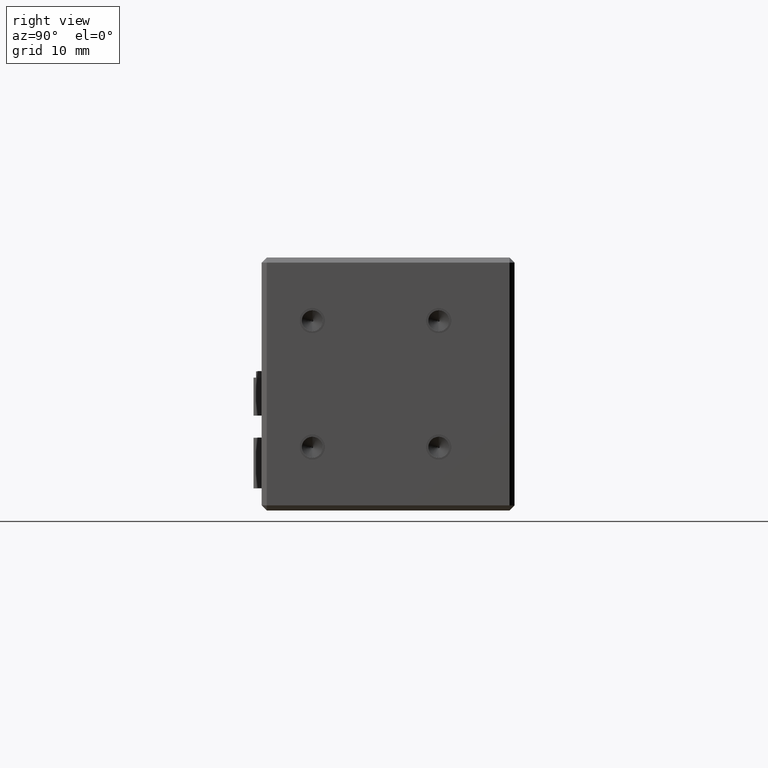
[diagram: clean part render]
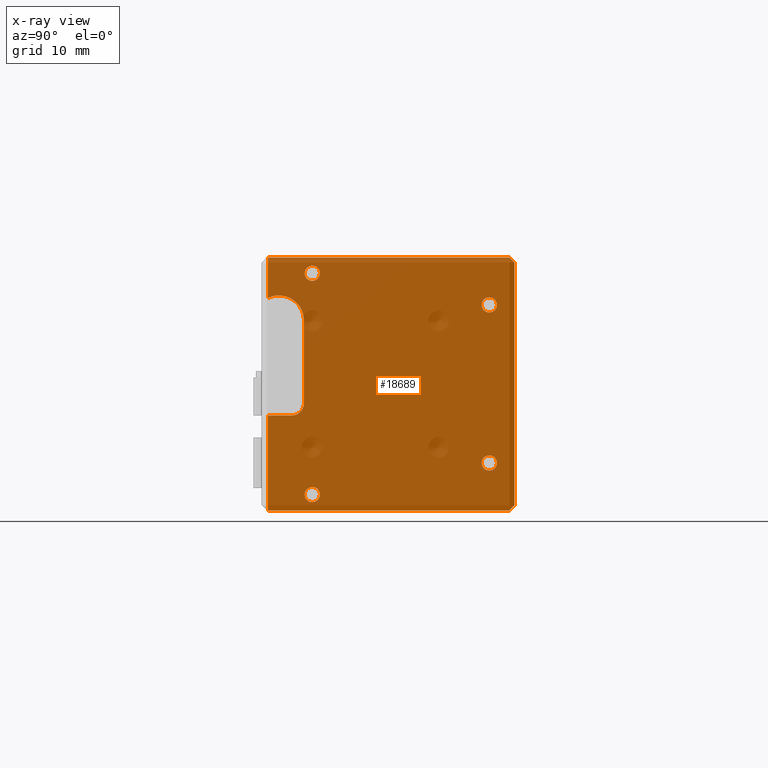
[diagram: x-ray — body ghosted, one internal face saturated and labeled with its STEP entity id]
A machine part, right view, then the same camera in x-ray: the body is ghosted and one INTERNAL B-rep face — a face not visible from any outside direction — is saturated and labeled: STEP entity #18689.
In plain terms, the highlighted planar face has unit normal (1, 0, -0).
Its self-contained STEP definition (entity closure, byte-faithful):
#78 = VERTEX_POINT ( 'NONE', #31512 ) ;
#199 = VERTEX_POINT ( 'NONE', #16194 ) ;
#240 = CARTESIAN_POINT ( 'NONE',  ( -41.23777979801199900, 1.181386022460057600, 36.30000000000956100 ) ) ;
#282 = ORIENTED_EDGE ( 'NONE', *, *, #27741, .T. ) ;
#288 = DIRECTION ( 'NONE',  ( -1.000000000000000000, -1.942890293094023500E-016, 1.301620591984824700E-017 ) ) ;
#364 = EDGE_CURVE ( 'NONE', #17551, #14633, #31022, .T. ) ;
#493 = AXIS2_PLACEMENT_3D ( 'NONE', #18465, #2589, #21147 ) ;
#635 = CARTESIAN_POINT ( 'NONE',  ( -41.23777979801199900, -5.818613977539926400, 33.62077339805586700 ) ) ;
#871 = CARTESIAN_POINT ( 'NONE',  ( -41.23777979801200600, 29.18138602246007500, 32.50000000000954300 ) ) ;
#1042 = CIRCLE ( 'NONE', #13891, 1.199999999999992600 ) ;
#1169 = CIRCLE ( 'NONE', #4544, 1.199999999999993100 ) ;
#1180 = DIRECTION ( 'NONE',  ( -1.301620591984827800E-017, 1.578598363138894200E-016, -1.000000000000000000 ) ) ;
#1219 = DIRECTION ( 'NONE',  ( 0.0000000000000000000, -1.807003620809184500E-016, 1.000000000000000000 ) ) ;
#1511 = VERTEX_POINT ( 'NONE', #7154 ) ;
#1517 = ORIENTED_EDGE ( 'NONE', *, *, #22573, .T. ) ;
#1552 = CARTESIAN_POINT ( 'NONE',  ( -41.23777979801199900, 1.181386022460057600, 1.300000000009557100 ) ) ;
#1726 = EDGE_CURVE ( 'NONE', #22680, #22558, #1169, .T. ) ;
#1935 = EDGE_CURVE ( 'NONE', #13872, #2142, #7043, .T. ) ;
#2013 = EDGE_CURVE ( 'NONE', #23592, #199, #12032, .T. ) ;
#2089 = VERTEX_POINT ( 'NONE', #3049 ) ;
#2097 = DIRECTION ( 'NONE',  ( -1.000000000000000000, -1.942890293094023500E-016, 1.301620591984824700E-017 ) ) ;
#2142 = VERTEX_POINT ( 'NONE', #635 ) ;
#2172 = EDGE_CURVE ( 'NONE', #2142, #10660, #31929, .T. ) ;
#2191 = EDGE_CURVE ( 'NONE', #3240, #1511, #4527, .T. ) ;
#2589 = DIRECTION ( 'NONE',  ( 1.000000000000000000, 1.942890293094023500E-016, -1.301620591984824700E-017 ) ) ;
#2655 = CIRCLE ( 'NONE', #26435, 2.000000000000001800 ) ;
#2877 = CARTESIAN_POINT ( 'NONE',  ( -41.23777979801200600, 29.18138602246007500, 33.70000000000953800 ) ) ;
#2976 = CARTESIAN_POINT ( 'NONE',  ( -41.23777979801200600, 33.18138602246008200, 9.540196757584773500E-012 ) ) ;
#3049 = CARTESIAN_POINT ( 'NONE',  ( -41.23777979801199900, -5.818613977539923700, 15.00000000000955000 ) ) ;
#3240 = VERTEX_POINT ( 'NONE', #240 ) ;
#3365 = CIRCLE ( 'NONE', #8341, 1.199999999999993100 ) ;
#3522 = DIRECTION ( 'NONE',  ( 0.0000000000000000000, 0.0000000000000000000, 1.000000000000000000 ) ) ;
#3654 = DIRECTION ( 'NONE',  ( 1.942890293094023500E-016, -1.000000000000000000, -1.578598363138894200E-016 ) ) ;
#3735 = CIRCLE ( 'NONE', #4389, 1.199999999999992600 ) ;
#4218 = CIRCLE ( 'NONE', #22444, 1.199999999999992600 ) ;
#4237 = DIRECTION ( 'NONE',  ( -1.281792426635850800E-016, 0.7071067811865474600, 0.7071067811865476800 ) ) ;
#4389 = AXIS2_PLACEMENT_3D ( 'NONE', #11925, #30459, #14542 ) ;
#4527 = CIRCLE ( 'NONE', #5002, 1.199999999999992600 ) ;
#4544 = AXIS2_PLACEMENT_3D ( 'NONE', #15125, #33705, #17778 ) ;
#4972 = VECTOR ( 'NONE', #3654, 1000.000000000000000 ) ;
#5002 = AXIS2_PLACEMENT_3D ( 'NONE', #30073, #14164, #32761 ) ;
#5039 = EDGE_LOOP ( 'NONE', ( #7359, #28893 ) ) ;
#5099 = CARTESIAN_POINT ( 'NONE',  ( -41.23777979801200600, 33.18138602246006700, 39.20000000000953800 ) ) ;
#5154 = PLANE ( 'NONE',  #493 ) ;
#5241 = EDGE_CURVE ( 'NONE', #22558, #22680, #3365, .T. ) ;
#5503 = LINE ( 'NONE', #14951, #19581 ) ;
#5933 = CARTESIAN_POINT ( 'NONE',  ( -41.23777979801200600, 33.18138602246006700, 39.20000000000953800 ) ) ;
#6794 = FACE_BOUND ( 'NONE', #12261, .T. ) ;
#6855 = AXIS2_PLACEMENT_3D ( 'NONE', #14068, #32648, #16722 ) ;
#7043 = LINE ( 'NONE', #26005, #34380 ) ;
#7154 = CARTESIAN_POINT ( 'NONE',  ( -41.23777979801199900, 1.181386022460057400, 38.70000000000954500 ) ) ;
#7359 = ORIENTED_EDGE ( 'NONE', *, *, #21993, .T. ) ;
#7633 = ORIENTED_EDGE ( 'NONE', *, *, #33268, .T. ) ;
#8341 = AXIS2_PLACEMENT_3D ( 'NONE', #33020, #17108, #1219 ) ;
#8700 = ORIENTED_EDGE ( 'NONE', *, *, #32739, .T. ) ;
#8832 = CARTESIAN_POINT ( 'NONE',  ( -41.23777979801200600, 29.18138602246008200, 6.300000000009546000 ) ) ;
#9203 = DIRECTION ( 'NONE',  ( 1.301620591984827800E-017, -1.578598363138894200E-016, 1.000000000000000000 ) ) ;
#10359 = EDGE_CURVE ( 'NONE', #29365, #14550, #4218, .T. ) ;
#10552 = ORIENTED_EDGE ( 'NONE', *, *, #5241, .T. ) ;
#10660 = VERTEX_POINT ( 'NONE', #14849 ) ;
#11360 = DIRECTION ( 'NONE',  ( 1.465869376060755000E-016, -0.7071067811865476800, 0.7071067811865474600 ) ) ;
#11925 = CARTESIAN_POINT ( 'NONE',  ( -41.23777979801199900, 1.181386022460057600, 37.50000000000955700 ) ) ;
#12032 = CIRCLE ( 'NONE', #16326, 1.199999999999992600 ) ;
#12046 = LINE ( 'NONE', #19521, #4972 ) ;
#12261 = EDGE_LOOP ( 'NONE', ( #30171, #10552 ) ) ;
#12347 = CARTESIAN_POINT ( 'NONE',  ( -41.23777979801200600, 29.18138602246008200, 7.500000000009539000 ) ) ;
#12556 = LINE ( 'NONE', #17452, #33722 ) ;
#12703 = ORIENTED_EDGE ( 'NONE', *, *, #1935, .T. ) ;
#12803 = VERTEX_POINT ( 'NONE', #26161 ) ;
#12969 = FACE_BOUND ( 'NONE', #27716, .T. ) ;
#13872 = VERTEX_POINT ( 'NONE', #17258 ) ;
#13891 = AXIS2_PLACEMENT_3D ( 'NONE', #871, #19415, #3522 ) ;
#13965 = CARTESIAN_POINT ( 'NONE',  ( -41.23777979801199900, -0.1186139775399249200, 17.00000000000955700 ) ) ;
#14009 = AXIS2_PLACEMENT_3D ( 'NONE', #12347, #30890, #14964 ) ;
#14068 = CARTESIAN_POINT ( 'NONE',  ( -41.23777979801199900, -4.118613977539926200, 30.00000000000953200 ) ) ;
#14164 = DIRECTION ( 'NONE',  ( -1.000000000000000000, -1.942890293094023500E-016, 1.301620591984824700E-017 ) ) ;
#14455 = CARTESIAN_POINT ( 'NONE',  ( -41.23777979801200600, 33.18138602246008200, 9.540196757584773500E-012 ) ) ;
#14542 = DIRECTION ( 'NONE',  ( 0.0000000000000000000, -1.807003620809185200E-016, 1.000000000000000000 ) ) ;
#14550 = VERTEX_POINT ( 'NONE', #2877 ) ;
#14633 = VERTEX_POINT ( 'NONE', #16555 ) ;
#14849 = CARTESIAN_POINT ( 'NONE',  ( -41.23777979801199900, -0.1186139775399266700, 30.00000000000953900 ) ) ;
#14951 = CARTESIAN_POINT ( 'NONE',  ( -41.23777979801199900, -5.818613977539921000, 9.534040223968531800E-012 ) ) ;
#14964 = DIRECTION ( 'NONE',  ( 0.0000000000000000000, 0.0000000000000000000, 1.000000000000000000 ) ) ;
#15125 = CARTESIAN_POINT ( 'NONE',  ( -41.23777979801199900, 1.181386022460057600, 2.500000000009550100 ) ) ;
#15316 = DIRECTION ( 'NONE',  ( -1.000000000000000000, -1.942890293094023500E-016, 1.301620591984824700E-017 ) ) ;
#15773 = ORIENTED_EDGE ( 'NONE', *, *, #22692, .T. ) ;
#16026 = EDGE_CURVE ( 'NONE', #12803, #24457, #12556, .T. ) ;
#16166 = CARTESIAN_POINT ( 'NONE',  ( -41.23777979801200600, 29.18138602246008200, 7.500000000009539000 ) ) ;
#16194 = CARTESIAN_POINT ( 'NONE',  ( -41.23777979801200600, 29.18138602246008200, 8.700000000009531200 ) ) ;
#16326 = AXIS2_PLACEMENT_3D ( 'NONE', #16166, #288, #18798 ) ;
#16555 = CARTESIAN_POINT ( 'NONE',  ( -41.23777979801200600, 32.38138602246007000, 40.00000000000954300 ) ) ;
#16722 = DIRECTION ( 'NONE',  ( 0.0000000000000000000, 2.168404344971008900E-016, -1.000000000000000000 ) ) ;
#16898 = VECTOR ( 'NONE', #11360, 1000.000000000000000 ) ;
#17067 = CARTESIAN_POINT ( 'NONE',  ( -41.23777979801199900, -0.1186139775399240600, 9.534940025035519700E-012 ) ) ;
#17108 = DIRECTION ( 'NONE',  ( -1.000000000000000000, -1.942890293094023500E-016, 1.301620591984824700E-017 ) ) ;
#17258 = CARTESIAN_POINT ( 'NONE',  ( -41.23777979801199900, -5.818613977539927300, 40.00000000000953500 ) ) ;
#17452 = CARTESIAN_POINT ( 'NONE',  ( -41.23777979801200600, 32.38138602246007000, 9.540070469715722700E-012 ) ) ;
#17551 = VERTEX_POINT ( 'NONE', #5099 ) ;
#17556 = ORIENTED_EDGE ( 'NONE', *, *, #2013, .T. ) ;
#17778 = DIRECTION ( 'NONE',  ( 0.0000000000000000000, -1.807003620809184500E-016, 1.000000000000000000 ) ) ;
#17825 = ORIENTED_EDGE ( 'NONE', *, *, #20882, .T. ) ;
#17952 = CARTESIAN_POINT ( 'NONE',  ( -41.23777979801199900, -2.118613977539924000, 17.00000000000955000 ) ) ;
#18465 = CARTESIAN_POINT ( 'NONE',  ( -41.23777979801200600, 33.18138602246008200, 9.540196757584773500E-012 ) ) ;
#18689 = ADVANCED_FACE ( 'NONE', ( #20008, #6794, #34128, #27030, #12969 ), #5154, .T. ) ;
#18690 = ORIENTED_EDGE ( 'NONE', *, *, #10359, .T. ) ;
#18798 = DIRECTION ( 'NONE',  ( 0.0000000000000000000, 0.0000000000000000000, 1.000000000000000000 ) ) ;
#19415 = DIRECTION ( 'NONE',  ( -1.000000000000000000, -1.942890293094023500E-016, 1.301620591984824700E-017 ) ) ;
#19521 = CARTESIAN_POINT ( 'NONE',  ( -41.23777979801200600, 33.18138602246008200, 15.00000000000955700 ) ) ;
#19538 = VECTOR ( 'NONE', #21546, 1000.000000000000000 ) ;
#19581 = VECTOR ( 'NONE', #33561, 1000.000000000000000 ) ;
#20008 = FACE_OUTER_BOUND ( 'NONE', #26739, .T. ) ;
#20020 = LINE ( 'NONE', #14455, #32460 ) ;
#20364 = DIRECTION ( 'NONE',  ( 1.942890293094023500E-016, -1.000000000000000000, -1.578598363138894200E-016 ) ) ;
#20662 = DIRECTION ( 'NONE',  ( 0.0000000000000000000, -2.168404344971006900E-016, 1.000000000000000000 ) ) ;
#20882 = EDGE_CURVE ( 'NONE', #14550, #29365, #1042, .T. ) ;
#21147 = DIRECTION ( 'NONE',  ( -1.301620591984827800E-017, 1.578598363138894200E-016, -1.000000000000000000 ) ) ;
#21546 = DIRECTION ( 'NONE',  ( -1.942890293094023500E-016, 1.000000000000000000, 1.578598363138894200E-016 ) ) ;
#21730 = ORIENTED_EDGE ( 'NONE', *, *, #21797, .T. ) ;
#21797 = EDGE_CURVE ( 'NONE', #78, #12803, #24079, .T. ) ;
#21993 = EDGE_CURVE ( 'NONE', #1511, #3240, #3735, .T. ) ;
#22398 = VERTEX_POINT ( 'NONE', #13965 ) ;
#22444 = AXIS2_PLACEMENT_3D ( 'NONE', #31218, #15316, #33923 ) ;
#22558 = VERTEX_POINT ( 'NONE', #1552 ) ;
#22573 = EDGE_CURVE ( 'NONE', #199, #23592, #27986, .T. ) ;
#22680 = VERTEX_POINT ( 'NONE', #28516 ) ;
#22692 = EDGE_CURVE ( 'NONE', #22398, #29910, #2655, .T. ) ;
#23047 = CARTESIAN_POINT ( 'NONE',  ( -41.23777979801200600, 33.18138602246006700, 40.00000000000954300 ) ) ;
#23592 = VERTEX_POINT ( 'NONE', #8832 ) ;
#23697 = DIRECTION ( 'NONE',  ( -1.301620591984827800E-017, 1.578598363138894200E-016, -1.000000000000000000 ) ) ;
#24079 = LINE ( 'NONE', #2976, #19538 ) ;
#24457 = VERTEX_POINT ( 'NONE', #29336 ) ;
#24894 = ORIENTED_EDGE ( 'NONE', *, *, #2172, .T. ) ;
#25630 = EDGE_CURVE ( 'NONE', #10660, #22398, #26718, .T. ) ;
#26005 = CARTESIAN_POINT ( 'NONE',  ( -41.23777979801199900, -5.818613977539921000, 9.534040223968531800E-012 ) ) ;
#26161 = CARTESIAN_POINT ( 'NONE',  ( -41.23777979801200600, 32.38138602246007000, 9.539906145323955400E-012 ) ) ;
#26435 = AXIS2_PLACEMENT_3D ( 'NONE', #17952, #2097, #20662 ) ;
#26718 = LINE ( 'NONE', #17067, #32985 ) ;
#26739 = EDGE_LOOP ( 'NONE', ( #24894, #28477, #15773, #7633, #282, #21730, #28857, #8700, #29764, #27978, #12703 ) ) ;
#26905 = CARTESIAN_POINT ( 'NONE',  ( -41.23777979801200600, 29.18138602246007500, 31.30000000000955000 ) ) ;
#26956 = LINE ( 'NONE', #23047, #32368 ) ;
#27030 = FACE_BOUND ( 'NONE', #33506, .T. ) ;
#27716 = EDGE_LOOP ( 'NONE', ( #1517, #17556 ) ) ;
#27741 = EDGE_CURVE ( 'NONE', #2089, #78, #5503, .T. ) ;
#27978 = ORIENTED_EDGE ( 'NONE', *, *, #28480, .T. ) ;
#27986 = CIRCLE ( 'NONE', #14009, 1.199999999999992600 ) ;
#28375 = CARTESIAN_POINT ( 'NONE',  ( -41.23777979801199900, -2.118613977539930600, 15.00000000000955000 ) ) ;
#28477 = ORIENTED_EDGE ( 'NONE', *, *, #25630, .T. ) ;
#28480 = EDGE_CURVE ( 'NONE', #14633, #13872, #26956, .T. ) ;
#28516 = CARTESIAN_POINT ( 'NONE',  ( -41.23777979801199900, 1.181386022460057400, 3.700000000009543200 ) ) ;
#28857 = ORIENTED_EDGE ( 'NONE', *, *, #16026, .T. ) ;
#28893 = ORIENTED_EDGE ( 'NONE', *, *, #2191, .T. ) ;
#29336 = CARTESIAN_POINT ( 'NONE',  ( -41.23777979801200600, 33.18138602246008200, 0.8000000000095423000 ) ) ;
#29365 = VERTEX_POINT ( 'NONE', #26905 ) ;
#29764 = ORIENTED_EDGE ( 'NONE', *, *, #364, .T. ) ;
#29910 = VERTEX_POINT ( 'NONE', #28375 ) ;
#30073 = CARTESIAN_POINT ( 'NONE',  ( -41.23777979801199900, 1.181386022460057600, 37.50000000000955700 ) ) ;
#30171 = ORIENTED_EDGE ( 'NONE', *, *, #1726, .T. ) ;
#30459 = DIRECTION ( 'NONE',  ( -1.000000000000000000, -1.942890293094023500E-016, 1.301620591984824700E-017 ) ) ;
#30890 = DIRECTION ( 'NONE',  ( -1.000000000000000000, -1.942890293094023500E-016, 1.301620591984824700E-017 ) ) ;
#31022 = LINE ( 'NONE', #5933, #16898 ) ;
#31218 = CARTESIAN_POINT ( 'NONE',  ( -41.23777979801200600, 29.18138602246007500, 32.50000000000954300 ) ) ;
#31512 = CARTESIAN_POINT ( 'NONE',  ( -41.23777979801199900, -5.818613977539921000, 9.534040223968531800E-012 ) ) ;
#31929 = CIRCLE ( 'NONE', #6855, 4.000000000000000000 ) ;
#32368 = VECTOR ( 'NONE', #20364, 1000.000000000000000 ) ;
#32460 = VECTOR ( 'NONE', #9203, 1000.000000000000000 ) ;
#32648 = DIRECTION ( 'NONE',  ( -1.000000000000000000, -1.942890293094023500E-016, 1.301620591984824700E-017 ) ) ;
#32739 = EDGE_CURVE ( 'NONE', #24457, #17551, #20020, .T. ) ;
#32761 = DIRECTION ( 'NONE',  ( 0.0000000000000000000, -1.807003620809185200E-016, 1.000000000000000000 ) ) ;
#32985 = VECTOR ( 'NONE', #1180, 1000.000000000000000 ) ;
#33020 = CARTESIAN_POINT ( 'NONE',  ( -41.23777979801199900, 1.181386022460057600, 2.500000000009550100 ) ) ;
#33268 = EDGE_CURVE ( 'NONE', #29910, #2089, #12046, .T. ) ;
#33506 = EDGE_LOOP ( 'NONE', ( #17825, #18690 ) ) ;
#33561 = DIRECTION ( 'NONE',  ( -1.301620591984827800E-017, 1.578598363138894200E-016, -1.000000000000000000 ) ) ;
#33705 = DIRECTION ( 'NONE',  ( -1.000000000000000000, -1.942890293094023500E-016, 1.301620591984824700E-017 ) ) ;
#33722 = VECTOR ( 'NONE', #4237, 1000.000000000000000 ) ;
#33923 = DIRECTION ( 'NONE',  ( 0.0000000000000000000, 0.0000000000000000000, 1.000000000000000000 ) ) ;
#34128 = FACE_BOUND ( 'NONE', #5039, .T. ) ;
#34380 = VECTOR ( 'NONE', #23697, 1000.000000000000000 ) ;